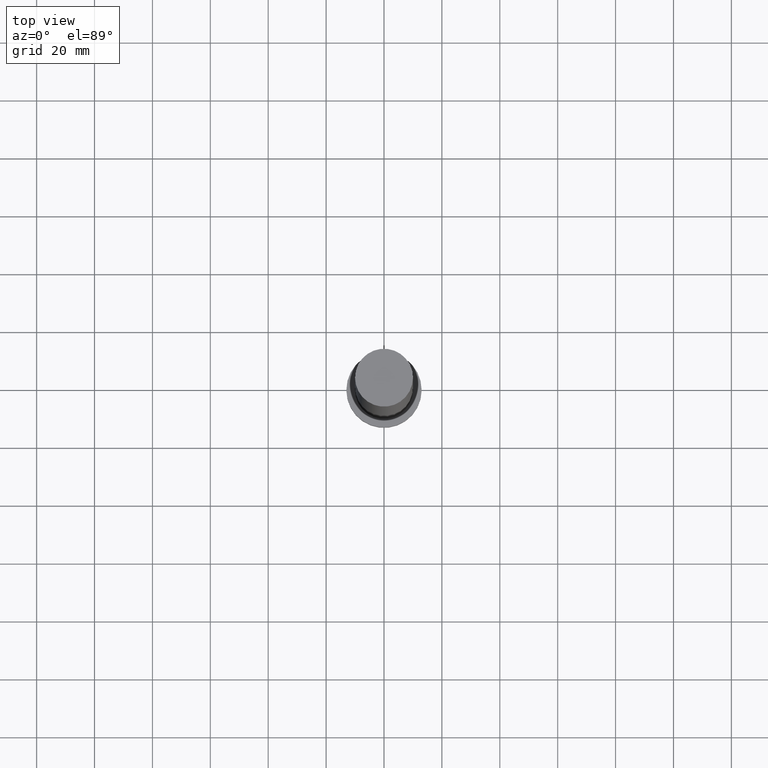
[diagram: clean part render]
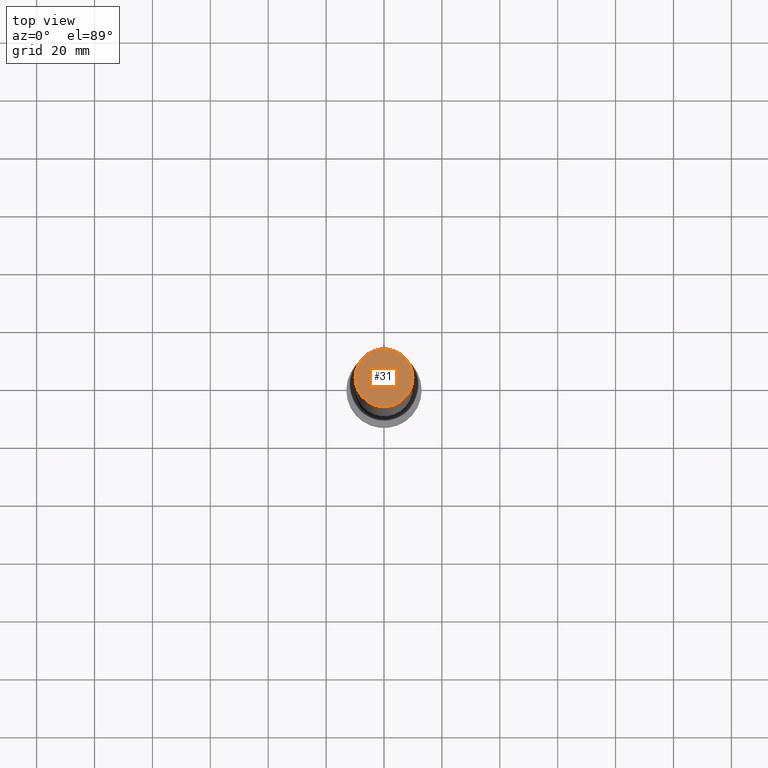
[diagram: same view with one face highlighted and labeled with its STEP entity id]
A machine part, top view. The second image highlights one B-rep face of the part: STEP entity #31.
In plain terms, the highlighted planar face has unit normal (0, 0, 1).
Its self-contained STEP definition (entity closure, byte-faithful):
#5 = DIRECTION ( 'NONE',  ( 0.000000000000000000, 0.000000000000000000, 1.000000000000000000 ) ) ;
#21 = CIRCLE ( 'NONE', #81, 10.00000000000000000 ) ;
#31 = ADVANCED_FACE ( 'NONE', ( #146 ), #50, .T. ) ;
#35 = AXIS2_PLACEMENT_3D ( 'NONE', #183, #5, #79 ) ;
#42 = EDGE_CURVE ( 'NONE', #70, #158, #21, .T. ) ;
#50 = PLANE ( 'NONE',  #35 ) ;
#54 = ORIENTED_EDGE ( 'NONE', *, *, #42, .T. ) ;
#70 = VERTEX_POINT ( 'NONE', #169 ) ;
#79 = DIRECTION ( 'NONE',  ( 1.000000000000000000, 0.000000000000000000, -0.000000000000000000 ) ) ;
#81 = AXIS2_PLACEMENT_3D ( 'NONE', #164, #136, #112 ) ;
#82 = AXIS2_PLACEMENT_3D ( 'NONE', #106, #195, #175 ) ;
#106 = CARTESIAN_POINT ( 'NONE',  ( 0.000000000000000000, 0.000000000000000000, 250.0000000000000000 ) ) ;
#112 = DIRECTION ( 'NONE',  ( 1.000000000000000000, 0.000000000000000000, 0.000000000000000000 ) ) ;
#136 = DIRECTION ( 'NONE',  ( 0.000000000000000000, 0.000000000000000000, 1.000000000000000000 ) ) ;
#146 = FACE_OUTER_BOUND ( 'NONE', #167, .T. ) ;
#147 = EDGE_CURVE ( 'NONE', #158, #70, #174, .T. ) ;
#154 = ORIENTED_EDGE ( 'NONE', *, *, #147, .T. ) ;
#158 = VERTEX_POINT ( 'NONE', #224 ) ;
#164 = CARTESIAN_POINT ( 'NONE',  ( 0.000000000000000000, 0.000000000000000000, 250.0000000000000000 ) ) ;
#167 = EDGE_LOOP ( 'NONE', ( #154, #54 ) ) ;
#169 = CARTESIAN_POINT ( 'NONE',  ( 10.00000000000000000, 1.224646799147353256E-15, 250.0000000000000000 ) ) ;
#174 = CIRCLE ( 'NONE', #82, 10.00000000000000000 ) ;
#175 = DIRECTION ( 'NONE',  ( 1.000000000000000000, 0.000000000000000000, 0.000000000000000000 ) ) ;
#183 = CARTESIAN_POINT ( 'NONE',  ( 0.000000000000000000, 0.000000000000000000, 250.0000000000000000 ) ) ;
#195 = DIRECTION ( 'NONE',  ( 0.000000000000000000, 0.000000000000000000, 1.000000000000000000 ) ) ;
#224 = CARTESIAN_POINT ( 'NONE',  ( -10.00000000000000000, 0.000000000000000000, 250.0000000000000000 ) ) ;